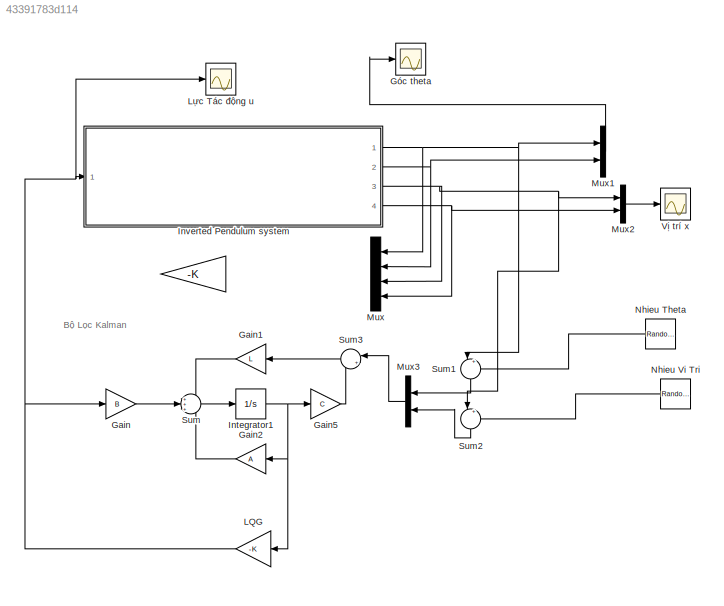
MODEL slx_43391783d114
KIND model
CONFIG AbsTol = auto
CONFIG EnableMultiTasking = off
CONFIG FixedStep = 0.01
CONFIG MaxStep = auto
CONFIG MinStep = auto
CONFIG RelTol = 1e-3
CONFIG SampleTimeConstraint = Unconstrained
CONFIG Solver = FixedStepAuto
CONFIG SolverName = FixedStepAuto
CONFIG StartTime = 0.0
CONFIG StopTime = 10
BLOCK [Gain]   
  Commented = on
  Gain = -K
  Multiplication = Matrix(K*u) (u vector)
  OutDataTypeStr = Inherit: Inherit via internal rule
  ParamDataTypeStr = Inherit: Inherit via internal rule
  SaturateOnIntegerOverflow = off
BLOCK [Gain]   LQG
  Gain = -K
  Multiplication = Matrix(K*u)
  OutDataTypeStr = Inherit: Inherit via internal rule
  ParamDataTypeStr = Inherit: Inherit via internal rule
  SaturateOnIntegerOverflow = off
BLOCK [Gain] Gain
  Gain = B
  Multiplication = Matrix(K*u)
  OutDataTypeStr = Inherit: Inherit via internal rule
  ParamDataTypeStr = Inherit: Inherit via internal rule
  SaturateOnIntegerOverflow = off
BLOCK [Gain] Gain1
  Gain = L
  Multiplication = Matrix(K*u)
  OutDataTypeStr = Inherit: Inherit via internal rule
  ParamDataTypeStr = Inherit: Inherit via internal rule
  SaturateOnIntegerOverflow = off
BLOCK [Gain] Gain2
  Gain = A
  Multiplication = Matrix(K*u)
  OutDataTypeStr = Inherit: Inherit via internal rule
  ParamDataTypeStr = Inherit: Inherit via internal rule
  SaturateOnIntegerOverflow = off
BLOCK [Gain] Gain5
  Gain = C
  Multiplication = Matrix(K*u)
  OutDataTypeStr = Inherit: Inherit via internal rule
  ParamDataTypeStr = Inherit: Inherit via internal rule
  SaturateOnIntegerOverflow = off
BLOCK [Scope] Góc theta
  NumInputPorts = 1
  Ports = [1]
  ScopeSpecificationString = Simulink.scopes.TimeScopeBlockCfg('CurrentConfiguration', extmgr.ConfigurationSet(extmgr.Configuration('Core','General UI',true,'FigureColor',[1 1 1]),extmgr.Configuration('Core','Source UI',true),extmgr.Configuration('Sources','WiredSimulink',true),extmgr.Configuration('Visuals','Time Domain',true,'SerializedDisplays',{struct('MinYLimReal','-0.2382','MaxYLimReal','0.22039','YLabelReal','','MinYLi...<+1633ch>
BLOCK [Integrator] Integrator1
  Ports = [1, 1]
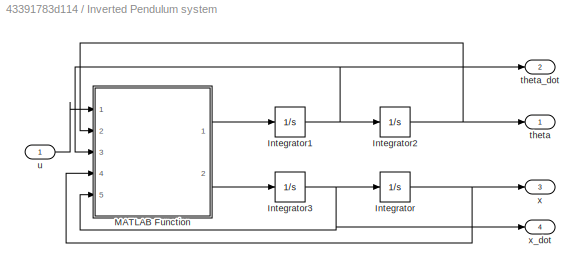
BLOCK [SubSystem] Inverted Pendulum system
  MinAlgLoopOccurrences = on
  Ports = [1, 4]
  RequestExecContextInheritance = off
  Variant = off
BLOCK [Integrator] Inverted Pendulum system/Integrator
  InitialCondition = xdot_init
  Ports = [1, 1]
BLOCK [Integrator] Inverted Pendulum system/Integrator1
  InitialCondition = theta_init
  Ports = [1, 1]
BLOCK [Integrator] Inverted Pendulum system/Integrator2
  InitialCondition = thetadot_init
  Ports = [1, 1]
BLOCK [Integrator] Inverted Pendulum system/Integrator3
  InitialCondition = x_init
  Ports = [1, 1]
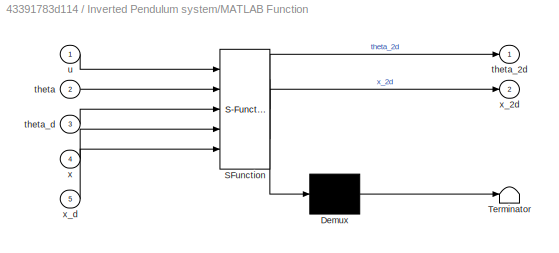
BLOCK [SubSystem] Inverted Pendulum system/MATLAB Function
  ErrorFcn = Stateflow.Translate.translate
  PermitHierarchicalResolution = ExplicitOnly
  Ports = [5, 2]
  RequestExecContextInheritance = off
  SFBlockType = MATLAB Function
  TreatAsAtomicUnit = on
  Variant = off
BLOCK [Demux] Inverted Pendulum system/MATLAB Function/ Demux 
  Outputs = 1
  Ports = [1, 1]
BLOCK [S-Function] Inverted Pendulum system/MATLAB Function/ SFunction 
  EnableBusSupport = on
  FunctionName = sf_sfun
  PortCounts = [5 3]
  Ports = [5, 3]
  SFcnIsStateOwnerBlock = off
  SFunctionDeploymentMode = off
  Tag = Stateflow S-Function Bai_2_matlab 2
BLOCK [Terminator] Inverted Pendulum system/MATLAB Function/ Terminator 
BLOCK [Inport] Inverted Pendulum system/MATLAB Function/theta
  IconDisplay = Port number
  Port = 2
BLOCK [Outport] Inverted Pendulum system/MATLAB Function/theta_2d
  IconDisplay = Port number
BLOCK [Inport] Inverted Pendulum system/MATLAB Function/theta_d
  IconDisplay = Port number
  Port = 3
BLOCK [Inport] Inverted Pendulum system/MATLAB Function/u
  IconDisplay = Port number
BLOCK [Inport] Inverted Pendulum system/MATLAB Function/x
  IconDisplay = Port number
  Port = 4
BLOCK [Outport] Inverted Pendulum system/MATLAB Function/x_2d
  IconDisplay = Port number
  Port = 2
BLOCK [Inport] Inverted Pendulum system/MATLAB Function/x_d
  IconDisplay = Port number
  Port = 5
BLOCK [Outport] Inverted Pendulum system/theta 
  IconDisplay = Port number
BLOCK [Outport] Inverted Pendulum system/theta_dot
  IconDisplay = Port number
  Port = 2
BLOCK [Inport] Inverted Pendulum system/u 
  IconDisplay = Port number
BLOCK [Outport] Inverted Pendulum system/x
  IconDisplay = Port number
  Port = 3
BLOCK [Outport] Inverted Pendulum system/x_dot
  IconDisplay = Port number
  Port = 4
BLOCK [Scope] Lực Tác động u
  NumInputPorts = 1
  Ports = [1]
  ScopeSpecificationString = Simulink.scopes.TimeScopeBlockCfg('CurrentConfiguration', extmgr.ConfigurationSet(extmgr.Configuration('Core','General UI',true,'FigureColor',[1 1 1]),extmgr.Configuration('Core','Source UI',true),extmgr.Configuration('Sources','WiredSimulink',true,'DataLoggingVariableName','ScopeData1'),extmgr.Configuration('Visuals','Time Domain',true,'SerializedDisplays',{struct('MinYLimReal','-1.61912','MaxYLi...<+1563ch>
BLOCK [Mux] Mux
  Commented = on
  DisplayOption = bar
  Ports = [4, 1]
BLOCK [Mux] Mux1
  DisplayOption = bar
  Inputs = 2
  Ports = [2, 1]
BLOCK [Mux] Mux2
  DisplayOption = bar
  Inputs = 2
  Ports = [2, 1]
BLOCK [Mux] Mux3
  DisplayOption = bar
  Inputs = 2
  Ports = [2, 1]
BLOCK [RandomNumber] Nhieu Theta 
  SampleTime = 0.01
  Variance = 0.001
BLOCK [RandomNumber] Nhieu Vi Tri
  SampleTime = 0.01
  Variance = 0.01
BLOCK [Sum] Sum
  IconShape = round
  InputSameDT = off
  Inputs = +++
  OutDataTypeStr = Inherit: Inherit via internal rule
  Ports = [3, 1]
  SaturateOnIntegerOverflow = off
BLOCK [Sum] Sum1
  IconShape = round
  InputSameDT = off
  Inputs = |++
  OutDataTypeStr = Inherit: Inherit via internal rule
  Ports = [2, 1]
  SaturateOnIntegerOverflow = off
BLOCK [Sum] Sum2
  IconShape = round
  InputSameDT = off
  Inputs = |++
  OutDataTypeStr = Inherit: Inherit via internal rule
  Ports = [2, 1]
  SaturateOnIntegerOverflow = off
BLOCK [Sum] Sum3
  IconShape = round
  InputSameDT = off
  Inputs = |+-
  OutDataTypeStr = Inherit: Inherit via internal rule
  Ports = [2, 1]
  SaturateOnIntegerOverflow = off
BLOCK [Scope] Vị trí x
  NumInputPorts = 1
  Ports = [1]
  ScopeSpecificationString = Simulink.scopes.TimeScopeBlockCfg('CurrentConfiguration', extmgr.ConfigurationSet(extmgr.Configuration('Core','General UI',true,'FigureColor',[1 1 1]),extmgr.Configuration('Core','Source UI',true),extmgr.Configuration('Sources','WiredSimulink',true,'DataLoggingVariableName','ScopeData2'),extmgr.Configuration('Visuals','Time Domain',true,'SerializedDisplays',{struct('MinYLimReal','-0.46831','MaxYLi...<+1684ch>
ANNOTATION (root): Bộ Lọc Kalman
NET   LQG:1 -> Gain:1, Inverted Pendulum system:1, Lực Tác động u:1
LINE Gain1:1 -> Sum:1
LINE Gain2:1 -> Sum:3
LINE Gain5:1 -> Sum3:2
LINE Gain:1 -> Sum:2
NET Integrator1:1 ->   LQG:1, Gain2:1, Gain5:1
NET Inverted Pendulum system/Integrator1:1 -> Inverted Pendulum system/Integrator2:1, Inverted Pendulum system/MATLAB Function:3, Inverted Pendulum system/theta_dot:1
NET Inverted Pendulum system/Integrator2:1 -> Inverted Pendulum system/MATLAB Function:2, Inverted Pendulum system/theta :1
NET Inverted Pendulum system/Integrator3:1 -> Inverted Pendulum system/Integrator:1, Inverted Pendulum system/MATLAB Function:5, Inverted Pendulum system/x_dot:1
NET Inverted Pendulum system/Integrator:1 -> Inverted Pendulum system/MATLAB Function:4, Inverted Pendulum system/x:1
LINE Inverted Pendulum system/MATLAB Function:1 -> Inverted Pendulum system/Integrator1:1
LINE Inverted Pendulum system/MATLAB Function:2 -> Inverted Pendulum system/Integrator3:1
LINE Inverted Pendulum system/u :1 -> Inverted Pendulum system/MATLAB Function:1
NET Inverted Pendulum system:1 -> Mux1:1, Mux:1, Sum1:1
NET Inverted Pendulum system:2 -> Mux1:2, Mux:2
NET Inverted Pendulum system:3 -> Mux2:1, Mux:3, Sum2:1
NET Inverted Pendulum system:4 -> Mux2:2, Mux:4
LINE Mux1:1 -> Góc theta:1
LINE Mux2:1 -> Vị trí x:1
LINE Mux3:1 -> Sum3:1
LINE Nhieu Theta :1 -> Sum1:2
LINE Nhieu Vi Tri:1 -> Sum2:2
LINE Sum1:1 -> Mux3:1
LINE Sum2:1 -> Mux3:2
LINE Sum3:1 -> Gain1:1
LINE Sum:1 -> Integrator1:1
note: NET lines group one-source signal fan-out (src -> all destinations, sorted); 1:1 wires keep LINE
CHART Inverted Pendulum system/MATLAB Function states=1 transitions=1
  STATE_LABEL 'eML_blk_kernel()'
  STATE_LABEL 'SCRIPT:\nfunction [theta_2d, x_2d] = Inverted_Pendulum(u, theta, theta_d, x, x_d)\n%% Declaration\nM = 1;\nm = 0.1;\nl = 1;\ng = 9.81;\n\n%% Simulink he con lac nguoc\nx_2d = (u + m*l*sin(theta)*(theta_d)^2 - m*g*cos(theta)*sin(theta)) / (M + m - m*(cos(theta))^2);\ntheta_2d = ((u*cos(theta) - (M + m)*g*sin(theta) + m*l*cos(theta)*sin(theta)*(theta_d)^2)) /(m*l*(cos(theta))^2 - (M + m)*l);'
